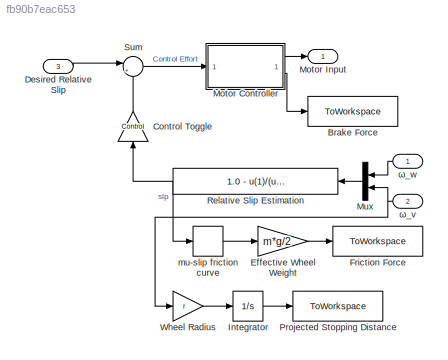
MODEL slx_fb90b7eac653
KIND model
CONFIG AbsTol = auto
CONFIG EnableMultiTasking = off
CONFIG FixedStep = 0.001
CONFIG MaxStep = auto
CONFIG MinStep = auto
CONFIG RelTol = 1e-3
CONFIG SampleTimeConstraint = Unconstrained
CONFIG SolverName = ode4
CONFIG StartTime = 0.0
CONFIG StopTime = 10.0
BLOCK [ToWorkspace] Brake Force
  FixptAsFi = on
  MaxDataPoints = inf
  SampleTime = -1
  SaveFormat = Timeseries
  VariableName = Fb
BLOCK [Gain] Control Toggle
  Gain = Control
  NameLocation = right
BLOCK [Inport] Desired Relative Slip
  Port = 3
BLOCK [Gain] Effective Wheel Weight
  Gain = m*g/2
BLOCK [ToWorkspace] Friction Force
  FixptAsFi = on
  MaxDataPoints = inf
  SampleTime = -1
  SaveFormat = Timeseries
  VariableName = Ff
BLOCK [Integrator] Integrator
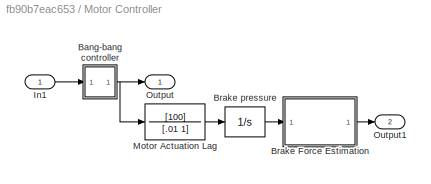
BLOCK [SubSystem] Motor Controller
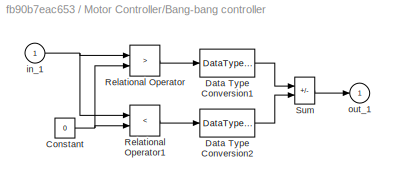
BLOCK [SubSystem] Motor Controller/Bang-bang controller
  ShowPortLabels = none
BLOCK [Constant] Motor Controller/Bang-bang controller/Constant
  Value = 0
BLOCK [DataTypeConversion] Motor Controller/Bang-bang controller/Data Type Conversion1
  OutDataTypeStr = double
BLOCK [DataTypeConversion] Motor Controller/Bang-bang controller/Data Type Conversion2
  OutDataTypeStr = double
BLOCK [RelationalOperator] Motor Controller/Bang-bang controller/Relational Operator
  Operator = >
  OutDataTypeStr = boolean
BLOCK [RelationalOperator] Motor Controller/Bang-bang controller/Relational Operator1
  Operator = <
  OutDataTypeStr = boolean
BLOCK [Sum] Motor Controller/Bang-bang controller/Sum
  IconShape = rectangular
  InputSameDT = on
  Inputs = +-
  OutDataTypeStr = Inherit: Same as first input
  SaturateOnIntegerOverflow = on
BLOCK [Inport] Motor Controller/Bang-bang controller/in_1
BLOCK [Outport] Motor Controller/Bang-bang controller/out_1
  InitialOutput = 0
  VectorParamsAs1DForOutWhenUnconnected = off
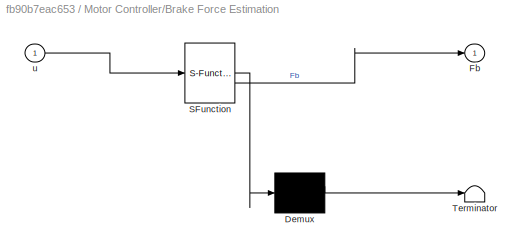
BLOCK [SubSystem] Motor Controller/Brake Force Estimation
  ErrorFcn = Stateflow.Translate.translate
  LibrarySourceBlock = simulink/User-Defined\nFunctions/MATLAB Function
  PermitHierarchicalResolution = ExplicitOnly
  SFBlockType = MATLAB Function
  TreatAsAtomicUnit = on
BLOCK [Demux] Motor Controller/Brake Force Estimation/ Demux 
  Outputs = 1
BLOCK [S-Function] Motor Controller/Brake Force Estimation/ SFunction 
  EnableBusSupport = on
  FunctionName = sf_sfun
  PortCounts = [1 2]
  SFcnIsStateOwnerBlock = off
  SFunctionDeploymentMode = off
  Tag = Stateflow S-Function 2
BLOCK [Terminator] Motor Controller/Brake Force Estimation/ Terminator 
BLOCK [Outport] Motor Controller/Brake Force Estimation/Fb
BLOCK [Inport] Motor Controller/Brake Force Estimation/u
BLOCK [Integrator] Motor Controller/Brake pressure
  LimitOutput = on
  LowerSaturationLimit = 0
  UpperSaturationLimit = PBmax
BLOCK [Inport] Motor Controller/In1
BLOCK [TransferFcn] Motor Controller/Motor Actuation Lag
  Denominator = [.01 1]
  Numerator = [100]
BLOCK [Outport] Motor Controller/Output
BLOCK [Outport] Motor Controller/Output1
  Port = 2
BLOCK [Outport] Motor Input
BLOCK [Mux] Mux
  DisplayOption = bar
  Inputs = 2
BLOCK [ToWorkspace] Projected Stopping Distance
  FixptAsFi = on
  MaxDataPoints = inf
  SampleTime = -1
  SaveFormat = Timeseries
  VariableName = Sd
BLOCK [Fcn] Relative Slip Estimation
  Expr = 1.0 - u(1)/(u(2) + (u(2)==0)*eps)
BLOCK [Sum] Sum
  Inputs = |+-
BLOCK [Gain] Wheel Radius
  Gain = r
BLOCK [Lookup_n-D] mu-slip friction curve
  BreakpointsForDimension1 = slip
  InputPortMap = u0
  NumberOfTableDimensions = 1
  SaturateOnIntegerOverflow = on
  Table = mu
BLOCK [Inport] ω_v
  Port = 2
BLOCK [Inport] ω_w
LINE Control Toggle:1 -> Sum:2
LINE Desired Relative Slip:1 -> Sum:1
LINE Effective Wheel Weight:1 -> Friction Force:1
LINE Integrator:1 -> Projected Stopping Distance:1
NET Motor Controller/Bang-bang controller/Constant:1 -> Motor Controller/Bang-bang controller/Relational Operator1:2, Motor Controller/Bang-bang controller/Relational Operator:2
LINE Motor Controller/Bang-bang controller/Data Type Conversion1:1 -> Motor Controller/Bang-bang controller/Sum:1
LINE Motor Controller/Bang-bang controller/Data Type Conversion2:1 -> Motor Controller/Bang-bang controller/Sum:2
LINE Motor Controller/Bang-bang controller/Relational Operator1:1 -> Motor Controller/Bang-bang controller/Data Type Conversion2:1
LINE Motor Controller/Bang-bang controller/Relational Operator:1 -> Motor Controller/Bang-bang controller/Data Type Conversion1:1
LINE Motor Controller/Bang-bang controller/Sum:1 -> Motor Controller/Bang-bang controller/out_1:1
NET Motor Controller/Bang-bang controller/in_1:1 -> Motor Controller/Bang-bang controller/Relational Operator1:1, Motor Controller/Bang-bang controller/Relational Operator:1
NET Motor Controller/Bang-bang controller:1 -> Motor Controller/Motor Actuation Lag:1, Motor Controller/Output:1
LINE Motor Controller/Brake Force Estimation:1 -> Motor Controller/Output1:1
LINE Motor Controller/Brake pressure:1 -> Motor Controller/Brake Force Estimation:1
LINE Motor Controller/In1:1 -> Motor Controller/Bang-bang controller:1
LINE Motor Controller/Motor Actuation Lag:1 -> Motor Controller/Brake pressure:1
LINE Motor Controller:1 -> Motor Input:1
LINE Motor Controller:2 -> Brake Force:1
LINE Mux:1 -> Relative Slip Estimation:1
NET Relative Slip Estimation:1 -> Control Toggle:1, mu-slip friction curve:1
LINE Sum:1 -> Motor Controller:1
LINE Wheel Radius:1 -> Integrator:1
LINE mu-slip friction curve:1 -> Effective Wheel Weight:1
NET ω_v:1 -> Mux:2, Wheel Radius:1
LINE ω_w:1 -> Mux:1
note: NET lines group one-source signal fan-out (src -> all destinations, sorted); 1:1 wires keep LINE
CHART Motor Controller/Brake Force Estimation states=1 transitions=1
  STATE_LABEL 'eML_blk_kernel()'
  STATE_LABEL 'SCRIPT:\nfunction Fb = fcn(u)\n\nk1 = 0.7;\nk2 = 0.23;\n\nFb = 100*k1*k2*u - 0.6;\n'
CHART  states=0 transitions=0
